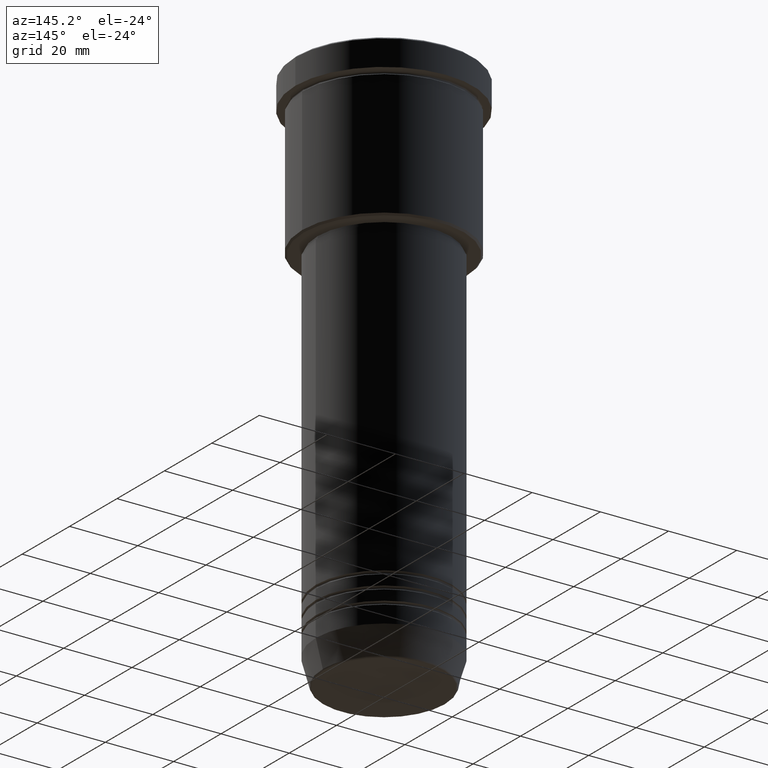
[diagram: clean part render]
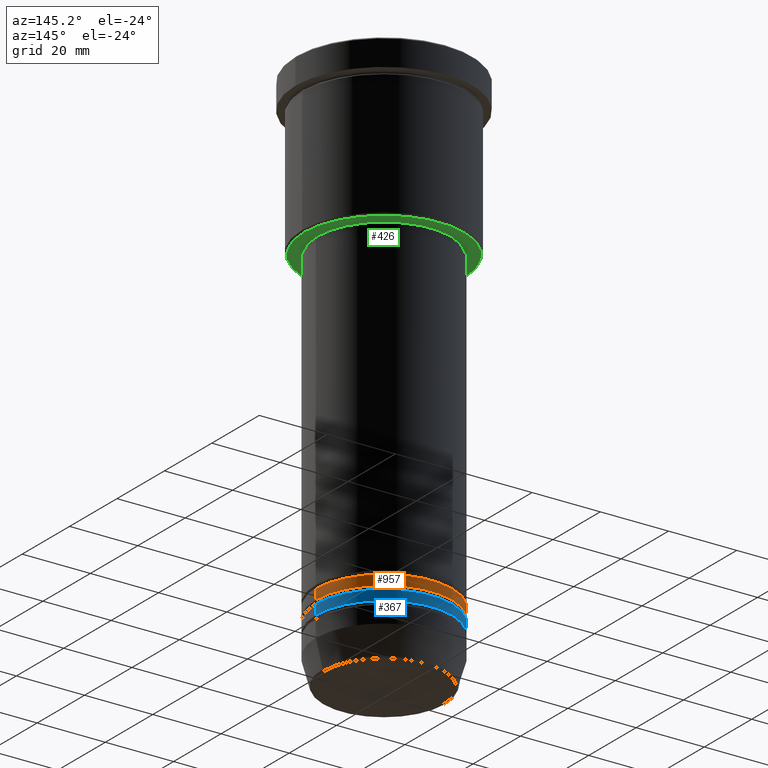
[diagram: same view with three faces highlighted in distinct colors, each labeled with its STEP entity id]
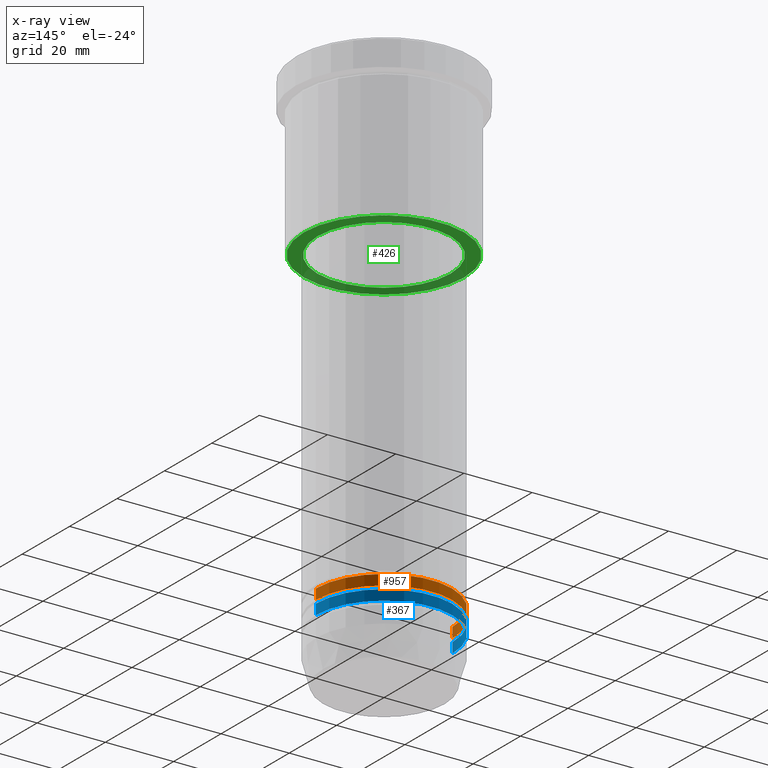
[diagram: x-ray of the same camera — body ghosted, the three highlighted faces saturated]
A machine part, auxiliary view with three faces highlighted in distinct colors.
The next image is the same camera in x-ray (body ghosted, the three faces saturated) — at least one of them is partly hidden behind the body in this view.
Their STEP definitions:

[orange] entity #957 — the highlighted cylindrical surface (partial cylindrical patch) has radius 20 mm, axis along (-0, -0, 1).
#25 = AXIS2_PLACEMENT_3D ( 'NONE', #527, #63, #435 ) ;
#40 = ORIENTED_EDGE ( 'NONE', *, *, #1102, .T. ) ;
#41 = CARTESIAN_POINT ( 'NONE',  ( -20.00000000000000355, 2.449293598294706907E-15, -142.0000000000000000 ) ) ;
#63 = DIRECTION ( 'NONE',  ( -0.000000000000000000, -0.000000000000000000, 1.000000000000000000 ) ) ;
#68 = VERTEX_POINT ( 'NONE', #456 ) ;
#95 = CARTESIAN_POINT ( 'NONE',  ( 0.000000000000000000, 0.000000000000000000, -142.0000000000000000 ) ) ;
#112 = LINE ( 'NONE', #581, #446 ) ;
#118 = AXIS2_PLACEMENT_3D ( 'NONE', #95, #286, #648 ) ;
#146 = CARTESIAN_POINT ( 'NONE',  ( 20.00000000000000355, 0.000000000000000000, -142.0000000000000000 ) ) ;
#147 = VERTEX_POINT ( 'NONE', #146 ) ;
#153 = FACE_OUTER_BOUND ( 'NONE', #593, .T. ) ;
#248 = CYLINDRICAL_SURFACE ( 'NONE', #25, 20.00000000000000355 ) ;
#286 = DIRECTION ( 'NONE',  ( -0.000000000000000000, -0.000000000000000000, 1.000000000000000000 ) ) ;
#330 = AXIS2_PLACEMENT_3D ( 'NONE', #502, #693, #414 ) ;
#375 = VECTOR ( 'NONE', #404, 1000.000000000000000 ) ;
#385 = CARTESIAN_POINT ( 'NONE',  ( -20.00000000000000355, 2.449293598294706907E-15, 0.000000000000000000 ) ) ;
#404 = DIRECTION ( 'NONE',  ( -0.000000000000000000, -0.000000000000000000, 1.000000000000000000 ) ) ;
#414 = DIRECTION ( 'NONE',  ( 1.000000000000000000, 0.000000000000000000, 0.000000000000000000 ) ) ;
#418 = DIRECTION ( 'NONE',  ( -0.000000000000000000, -0.000000000000000000, 1.000000000000000000 ) ) ;
#435 = DIRECTION ( 'NONE',  ( 1.000000000000000000, 0.000000000000000000, 0.000000000000000000 ) ) ;
#446 = VECTOR ( 'NONE', #418, 1000.000000000000000 ) ;
#456 = CARTESIAN_POINT ( 'NONE',  ( -20.00000000000000000, 2.449293598294706513E-15, -138.9999999999999716 ) ) ;
#458 = ORIENTED_EDGE ( 'NONE', *, *, #498, .F. ) ;
#498 = EDGE_CURVE ( 'NONE', #1001, #68, #580, .T. ) ;
#502 = CARTESIAN_POINT ( 'NONE',  ( 0.000000000000000000, 0.000000000000000000, -138.9999999999999716 ) ) ;
#527 = CARTESIAN_POINT ( 'NONE',  ( 0.000000000000000000, 0.000000000000000000, 0.000000000000000000 ) ) ;
#542 = EDGE_CURVE ( 'NONE', #147, #1001, #112, .T. ) ;
#580 = CIRCLE ( 'NONE', #330, 20.00000000000000000 ) ;
#581 = CARTESIAN_POINT ( 'NONE',  ( 20.00000000000000355, 0.000000000000000000, 0.000000000000000000 ) ) ;
#593 = EDGE_LOOP ( 'NONE', ( #858, #40, #458, #1121 ) ) ;
#648 = DIRECTION ( 'NONE',  ( 1.000000000000000000, 0.000000000000000000, 0.000000000000000000 ) ) ;
#680 = CIRCLE ( 'NONE', #118, 20.00000000000000355 ) ;
#693 = DIRECTION ( 'NONE',  ( -0.000000000000000000, -0.000000000000000000, 1.000000000000000000 ) ) ;
#753 = LINE ( 'NONE', #385, #375 ) ;
#858 = ORIENTED_EDGE ( 'NONE', *, *, #1083, .T. ) ;
#865 = VERTEX_POINT ( 'NONE', #41 ) ;
#916 = CARTESIAN_POINT ( 'NONE',  ( 20.00000000000000000, 0.000000000000000000, -138.9999999999999716 ) ) ;
#957 = ADVANCED_FACE ( 'NONE', ( #153 ), #248, .T. ) ;
#1001 = VERTEX_POINT ( 'NONE', #916 ) ;
#1083 = EDGE_CURVE ( 'NONE', #147, #865, #680, .T. ) ;
#1102 = EDGE_CURVE ( 'NONE', #865, #68, #753, .T. ) ;
#1121 = ORIENTED_EDGE ( 'NONE', *, *, #542, .F. ) ;

[blue] entity #367 — the highlighted cylindrical surface (partial cylindrical patch) has radius 20 mm, axis along (-0, -0, 1).
#22 = DIRECTION ( 'NONE',  ( 1.000000000000000000, 0.000000000000000000, 0.000000000000000000 ) ) ;
#57 = CIRCLE ( 'NONE', #836, 20.00000000000000000 ) ;
#73 = CARTESIAN_POINT ( 'NONE',  ( -20.00000000000000355, 2.449293598294706907E-15, 0.000000000000000000 ) ) ;
#86 = CYLINDRICAL_SURFACE ( 'NONE', #969, 20.00000000000000355 ) ;
#92 = CARTESIAN_POINT ( 'NONE',  ( 20.00000000000000355, 0.000000000000000000, -145.9999999999999716 ) ) ;
#100 = VECTOR ( 'NONE', #1178, 1000.000000000000000 ) ;
#173 = DIRECTION ( 'NONE',  ( -0.000000000000000000, -0.000000000000000000, 1.000000000000000000 ) ) ;
#175 = CARTESIAN_POINT ( 'NONE',  ( 0.000000000000000000, 0.000000000000000000, -143.0000000000000000 ) ) ;
#192 = LINE ( 'NONE', #735, #100 ) ;
#202 = EDGE_CURVE ( 'NONE', #545, #695, #1080, .T. ) ;
#299 = CARTESIAN_POINT ( 'NONE',  ( 0.000000000000000000, 0.000000000000000000, 0.000000000000000000 ) ) ;
#310 = ORIENTED_EDGE ( 'NONE', *, *, #202, .T. ) ;
#337 = DIRECTION ( 'NONE',  ( -0.000000000000000000, -0.000000000000000000, 1.000000000000000000 ) ) ;
#367 = ADVANCED_FACE ( 'NONE', ( #548 ), #86, .T. ) ;
#382 = VERTEX_POINT ( 'NONE', #92 ) ;
#471 = AXIS2_PLACEMENT_3D ( 'NONE', #1059, #173, #1053 ) ;
#543 = CIRCLE ( 'NONE', #471, 20.00000000000000355 ) ;
#545 = VERTEX_POINT ( 'NONE', #852 ) ;
#548 = FACE_OUTER_BOUND ( 'NONE', #869, .T. ) ;
#605 = EDGE_CURVE ( 'NONE', #635, #695, #57, .T. ) ;
#635 = VERTEX_POINT ( 'NONE', #801 ) ;
#650 = DIRECTION ( 'NONE',  ( -0.000000000000000000, -0.000000000000000000, 1.000000000000000000 ) ) ;
#695 = VERTEX_POINT ( 'NONE', #1163 ) ;
#703 = ORIENTED_EDGE ( 'NONE', *, *, #1039, .F. ) ;
#735 = CARTESIAN_POINT ( 'NONE',  ( 20.00000000000000355, 0.000000000000000000, 0.000000000000000000 ) ) ;
#792 = DIRECTION ( 'NONE',  ( 1.000000000000000000, 0.000000000000000000, 0.000000000000000000 ) ) ;
#801 = CARTESIAN_POINT ( 'NONE',  ( 20.00000000000000000, 0.000000000000000000, -143.0000000000000000 ) ) ;
#836 = AXIS2_PLACEMENT_3D ( 'NONE', #175, #337, #792 ) ;
#852 = CARTESIAN_POINT ( 'NONE',  ( -20.00000000000000355, 2.449293598294706907E-15, -145.9999999999999716 ) ) ;
#869 = EDGE_LOOP ( 'NONE', ( #1110, #310, #1078, #703 ) ) ;
#931 = EDGE_CURVE ( 'NONE', #382, #545, #543, .T. ) ;
#932 = VECTOR ( 'NONE', #1066, 1000.000000000000000 ) ;
#969 = AXIS2_PLACEMENT_3D ( 'NONE', #299, #650, #22 ) ;
#1039 = EDGE_CURVE ( 'NONE', #382, #635, #192, .T. ) ;
#1053 = DIRECTION ( 'NONE',  ( 1.000000000000000000, 0.000000000000000000, 0.000000000000000000 ) ) ;
#1059 = CARTESIAN_POINT ( 'NONE',  ( 0.000000000000000000, 0.000000000000000000, -145.9999999999999716 ) ) ;
#1066 = DIRECTION ( 'NONE',  ( -0.000000000000000000, -0.000000000000000000, 1.000000000000000000 ) ) ;
#1078 = ORIENTED_EDGE ( 'NONE', *, *, #605, .F. ) ;
#1080 = LINE ( 'NONE', #73, #932 ) ;
#1110 = ORIENTED_EDGE ( 'NONE', *, *, #931, .T. ) ;
#1163 = CARTESIAN_POINT ( 'NONE',  ( -20.00000000000000000, 2.449293598294706513E-15, -143.0000000000000000 ) ) ;
#1178 = DIRECTION ( 'NONE',  ( -0.000000000000000000, -0.000000000000000000, 1.000000000000000000 ) ) ;

[green] entity #426 — the highlighted planar face has unit normal (0, 0, -1).
#1 = EDGE_CURVE ( 'NONE', #941, #948, #1128, .T. ) ;
#27 = DIRECTION ( 'NONE',  ( -0.000000000000000000, -0.000000000000000000, 1.000000000000000000 ) ) ;
#59 = CIRCLE ( 'NONE', #900, 19.50000000000000355 ) ;
#64 = DIRECTION ( 'NONE',  ( -1.000000000000000000, 0.000000000000000000, 0.000000000000000000 ) ) ;
#72 = EDGE_LOOP ( 'NONE', ( #782, #614 ) ) ;
#90 = DIRECTION ( 'NONE',  ( 1.000000000000000000, 0.000000000000000000, 0.000000000000000000 ) ) ;
#96 = CARTESIAN_POINT ( 'NONE',  ( 0.000000000000000000, 24.00000000000000000, -46.00000000000000000 ) ) ;
#159 = CARTESIAN_POINT ( 'NONE',  ( 23.49999999999997513, 0.000000000000000000, -46.00000000000000000 ) ) ;
#170 = CARTESIAN_POINT ( 'NONE',  ( 0.000000000000000000, 0.000000000000000000, -46.00000000000000000 ) ) ;
#196 = FACE_BOUND ( 'NONE', #72, .T. ) ;
#278 = CIRCLE ( 'NONE', #544, 23.49999999999997513 ) ;
#292 = PLANE ( 'NONE',  #470 ) ;
#377 = ORIENTED_EDGE ( 'NONE', *, *, #983, .T. ) ;
#383 = DIRECTION ( 'NONE',  ( -1.000000000000000000, 0.000000000000000000, 0.000000000000000000 ) ) ;
#426 = ADVANCED_FACE ( 'NONE', ( #1008, #196 ), #292, .T. ) ;
#470 = AXIS2_PLACEMENT_3D ( 'NONE', #96, #1005, #557 ) ;
#485 = CARTESIAN_POINT ( 'NONE',  ( 0.000000000000000000, 0.000000000000000000, -46.00000000000000711 ) ) ;
#528 = DIRECTION ( 'NONE',  ( 0.000000000000000000, 0.000000000000000000, -1.000000000000000000 ) ) ;
#544 = AXIS2_PLACEMENT_3D ( 'NONE', #1183, #1084, #383 ) ;
#557 = DIRECTION ( 'NONE',  ( -1.000000000000000000, 0.000000000000000000, -0.000000000000000000 ) ) ;
#610 = EDGE_CURVE ( 'NONE', #1043, #940, #716, .T. ) ;
#614 = ORIENTED_EDGE ( 'NONE', *, *, #1, .T. ) ;
#676 = AXIS2_PLACEMENT_3D ( 'NONE', #170, #528, #64 ) ;
#716 = CIRCLE ( 'NONE', #676, 23.49999999999997513 ) ;
#723 = CARTESIAN_POINT ( 'NONE',  ( 0.000000000000000000, 0.000000000000000000, -46.00000000000000711 ) ) ;
#730 = CARTESIAN_POINT ( 'NONE',  ( -23.49999999999997513, 2.908536147974962530E-15, -46.00000000000000000 ) ) ;
#782 = ORIENTED_EDGE ( 'NONE', *, *, #1118, .T. ) ;
#825 = EDGE_LOOP ( 'NONE', ( #377, #1131 ) ) ;
#900 = AXIS2_PLACEMENT_3D ( 'NONE', #485, #27, #1115 ) ;
#940 = VERTEX_POINT ( 'NONE', #159 ) ;
#941 = VERTEX_POINT ( 'NONE', #1063 ) ;
#948 = VERTEX_POINT ( 'NONE', #963 ) ;
#963 = CARTESIAN_POINT ( 'NONE',  ( 19.50000000000000355, 0.000000000000000000, -46.00000000000000711 ) ) ;
#983 = EDGE_CURVE ( 'NONE', #940, #1043, #278, .T. ) ;
#1005 = DIRECTION ( 'NONE',  ( 0.000000000000000000, 0.000000000000000000, -1.000000000000000000 ) ) ;
#1008 = FACE_OUTER_BOUND ( 'NONE', #825, .T. ) ;
#1043 = VERTEX_POINT ( 'NONE', #730 ) ;
#1063 = CARTESIAN_POINT ( 'NONE',  ( -19.50000000000000355, 2.388061258337339333E-15, -46.00000000000000711 ) ) ;
#1071 = DIRECTION ( 'NONE',  ( -0.000000000000000000, -0.000000000000000000, 1.000000000000000000 ) ) ;
#1084 = DIRECTION ( 'NONE',  ( 0.000000000000000000, 0.000000000000000000, -1.000000000000000000 ) ) ;
#1107 = AXIS2_PLACEMENT_3D ( 'NONE', #723, #1071, #90 ) ;
#1115 = DIRECTION ( 'NONE',  ( 1.000000000000000000, 0.000000000000000000, 0.000000000000000000 ) ) ;
#1118 = EDGE_CURVE ( 'NONE', #948, #941, #59, .T. ) ;
#1128 = CIRCLE ( 'NONE', #1107, 19.50000000000000355 ) ;
#1131 = ORIENTED_EDGE ( 'NONE', *, *, #610, .T. ) ;
#1183 = CARTESIAN_POINT ( 'NONE',  ( 0.000000000000000000, 0.000000000000000000, -46.00000000000000000 ) ) ;